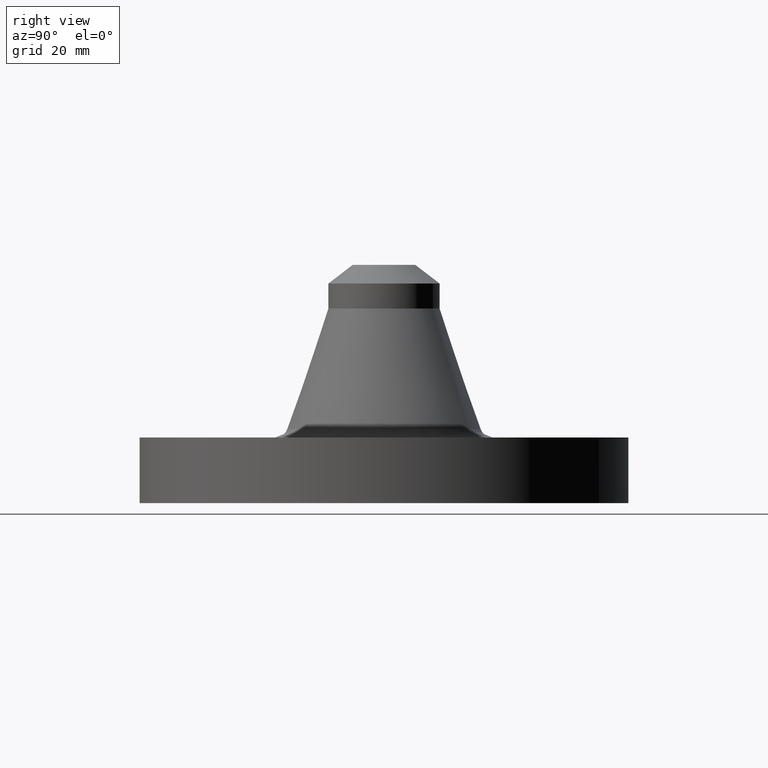
[diagram: clean part render]
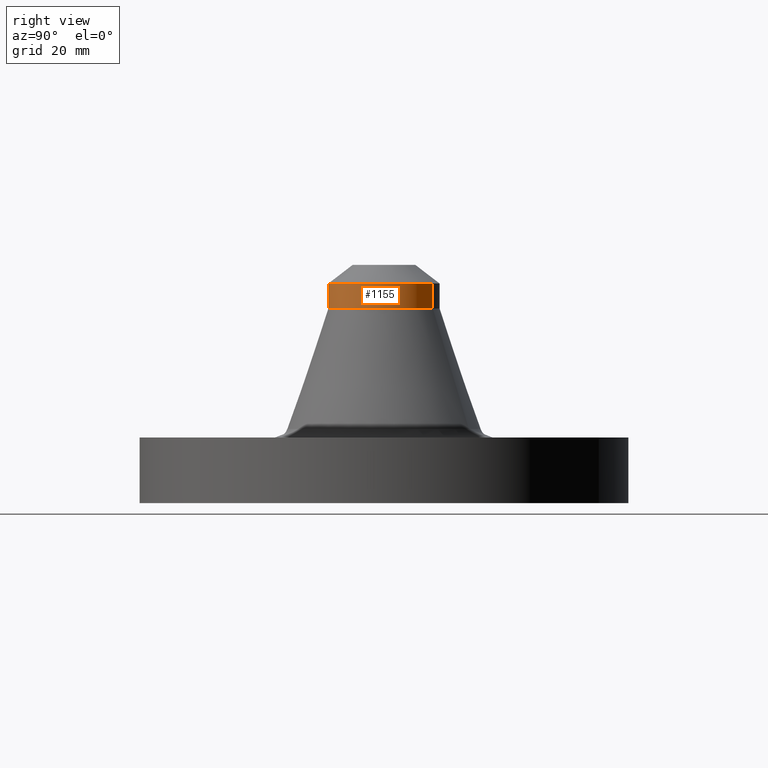
[diagram: same view with one face highlighted and labeled with its STEP entity id]
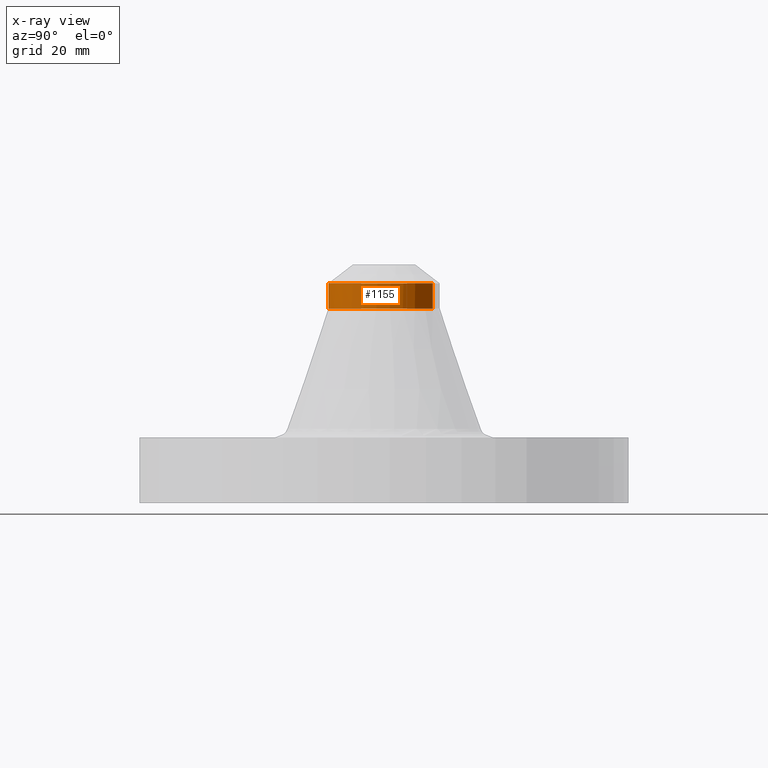
[diagram: x-ray of the same camera — body ghosted, the highlighted face saturated]
A machine part, right view. The second image highlights one B-rep face of the part: STEP entity #1155.
The next image is the same camera in x-ray: the body ghosted, the highlighted face saturated — about 0% of this face is hidden behind the body in this view.
In plain terms, the highlighted cylindrical surface (partial cylindrical patch) has radius 13.335 mm, axis along (-0, 0, -1).
Its self-contained STEP definition (entity closure, byte-faithful):
#839=AXIS2_PLACEMENT_3D('Circle Axis2P3D',#837,#838,$) ;
#1056=AXIS2_PLACEMENT_3D('Circle Axis2P3D',#1054,#1055,$) ;
#1095=AXIS2_PLACEMENT_3D('Circle Axis2P3D',#1093,#1094,$) ;
#1146=AXIS2_PLACEMENT_3D('Cylinder Axis2P3D',#1143,#1144,#1145) ;
#803=CARTESIAN_POINT('Vertex',(-0.251698407768,-0.460730844994,1.83786226314)) ;
#810=CARTESIAN_POINT('Vertex',(0.251698407768,0.460730844994,1.83786226314)) ;
#837=CARTESIAN_POINT('Axis2P3D Location',(0.,0.,1.83786226314)) ;
#1051=CARTESIAN_POINT('Vertex',(0.251698407769,-0.460730844996,2.07408273558)) ;
#1054=CARTESIAN_POINT('Axis2P3D Location',(0.,0.,2.07408273558)) ;
#1058=CARTESIAN_POINT('Vertex',(0.251698407768,0.460730844994,2.07408273559)) ;
#1090=CARTESIAN_POINT('Vertex',(-0.251698407768,-0.460730844994,2.07408273559)) ;
#1093=CARTESIAN_POINT('Axis2P3D Location',(0.,0.,2.07408273558)) ;
#1118=CARTESIAN_POINT('Line Origine',(0.251698407768,0.460730844994,1.95597249937)) ;
#1123=CARTESIAN_POINT('Line Origine',(-0.251698407768,-0.460730844994,1.95597249937)) ;
#1143=CARTESIAN_POINT('Axis2P3D Location',(0.,0.,1.125)) ;
#838=DIRECTION('Axis2P3D Direction',(-0.,0.,-0.0393700787402)) ;
#1055=DIRECTION('Axis2P3D Direction',(-0.,0.,-0.0393700787402)) ;
#1094=DIRECTION('Axis2P3D Direction',(-0.,0.,-0.0393700787402)) ;
#1119=DIRECTION('Vector Direction',(0.,0.,-0.0393700787402)) ;
#1124=DIRECTION('Vector Direction',(0.,0.,-0.0393700787402)) ;
#1144=DIRECTION('Axis2P3D Direction',(-0.,0.,-0.0393700787402)) ;
#1145=DIRECTION('Axis2P3D XDirection',(0.0188750212049,0.0345504945626,0.)) ;
#1120=VECTOR('Line Direction',#1119,0.0393700787402) ;
#1125=VECTOR('Line Direction',#1124,0.0393700787402) ;
#1149=ORIENTED_EDGE('',*,*,#1127,.F.) ;
#1150=ORIENTED_EDGE('',*,*,#841,.F.) ;
#1151=ORIENTED_EDGE('',*,*,#1122,.T.) ;
#1152=ORIENTED_EDGE('',*,*,#1060,.F.) ;
#1153=ORIENTED_EDGE('',*,*,#1097,.T.) ;
#1155=ADVANCED_FACE('PartBody',(#1154),#1147,.T.) ;
#840=CIRCLE('generated circle',#839,0.525000000002) ;
#1057=CIRCLE('generated circle',#1056,0.525000000004) ;
#1096=CIRCLE('generated circle',#1095,0.525000000004) ;
#1147=CYLINDRICAL_SURFACE('generated cylinder',#1146,0.525000000002) ;
#841=EDGE_CURVE('',#811,#804,#840,.T.) ;
#1060=EDGE_CURVE('',#1052,#1059,#1057,.F.) ;
#1097=EDGE_CURVE('',#1052,#1091,#1096,.T.) ;
#1122=EDGE_CURVE('',#811,#1059,#1121,.F.) ;
#1127=EDGE_CURVE('',#804,#1091,#1126,.F.) ;
#1148=EDGE_LOOP('',(#1149,#1150,#1151,#1152,#1153)) ;
#1154=FACE_OUTER_BOUND('',#1148,.T.) ;
#1121=LINE('Line',#1118,#1120) ;
#1126=LINE('Line',#1123,#1125) ;
#804=VERTEX_POINT('',#803) ;
#811=VERTEX_POINT('',#810) ;
#1052=VERTEX_POINT('',#1051) ;
#1059=VERTEX_POINT('',#1058) ;
#1091=VERTEX_POINT('',#1090) ;